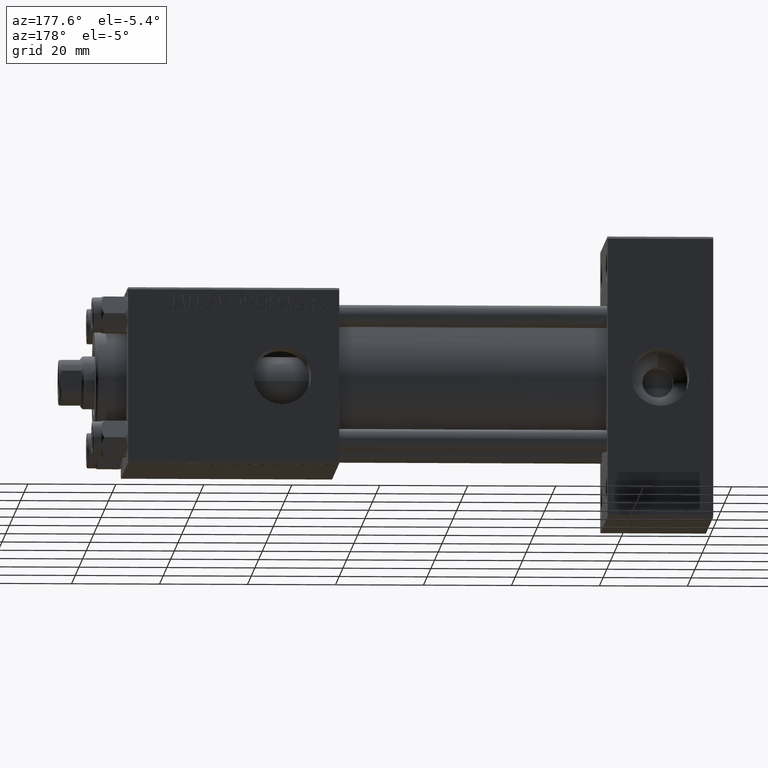
[diagram: clean part render]
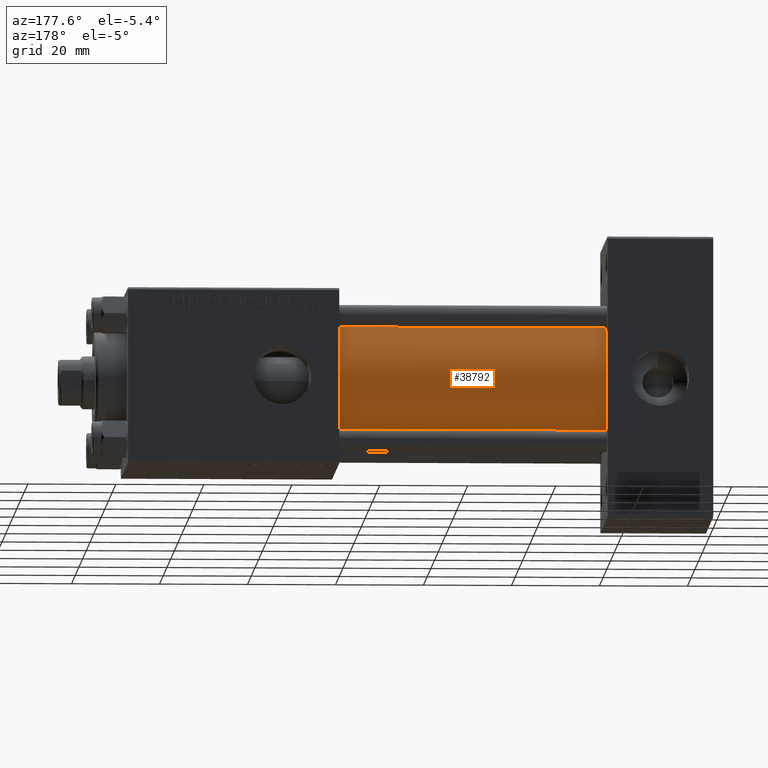
[diagram: same view with one face highlighted and labeled with its STEP entity id]
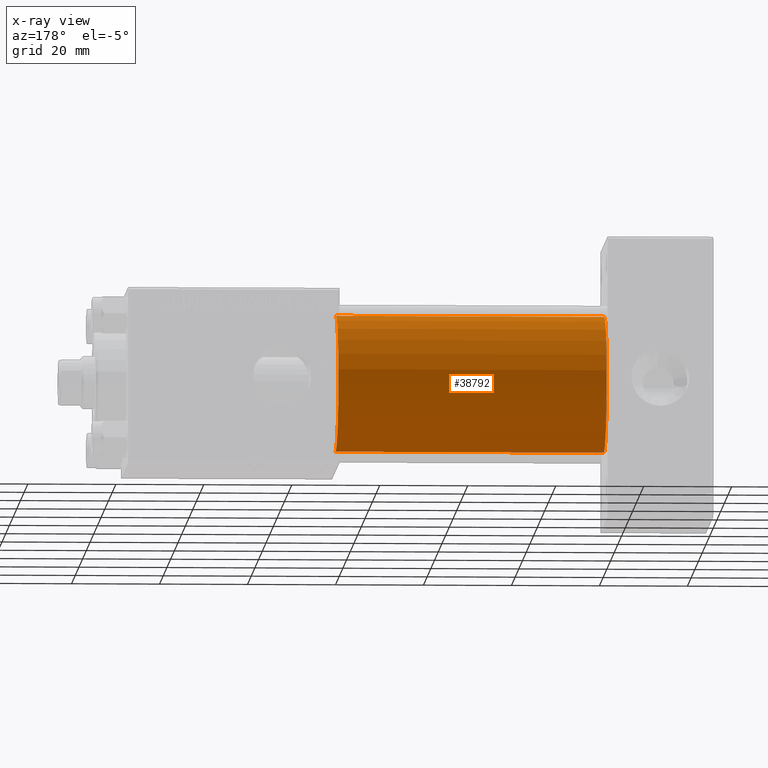
[diagram: x-ray of the same camera — body ghosted, the highlighted face saturated]
A machine part, auxiliary view. The second image highlights one B-rep face of the part: STEP entity #38792.
The next image is the same camera in x-ray: the body ghosted, the highlighted face saturated — about 0% of this face is hidden behind the body in this view.
In plain terms, the highlighted cylindrical surface (partial cylindrical patch) has radius 15.5 mm, axis along (-1, -0, -0).
Its self-contained STEP definition (entity closure, byte-faithful):
#82 = AXIS2_PLACEMENT_3D ( 'NONE', #4547, #769, #16159 ) ;
#769 = DIRECTION ( 'NONE',  ( -1.000000000000000000, -0.000000000000000000, -0.000000000000000000 ) ) ;
#2138 = EDGE_CURVE ( 'NONE', #35385, #14652, #38648, .T. ) ;
#3137 = CARTESIAN_POINT ( 'NONE',  ( 84.99999999999998579, -2.602085213965210642E-15, 15.50000000000000000 ) ) ;
#3630 = DIRECTION ( 'NONE',  ( -1.000000000000000000, -0.000000000000000000, -0.000000000000000000 ) ) ;
#4047 = DIRECTION ( 'NONE',  ( -1.000000000000000000, -0.000000000000000000, -0.000000000000000000 ) ) ;
#4360 = AXIS2_PLACEMENT_3D ( 'NONE', #14795, #42054, #7463 ) ;
#4547 = CARTESIAN_POINT ( 'NONE',  ( 84.99999999999998579, -2.602085213965210642E-15, 0.000000000000000000 ) ) ;
#5601 = VECTOR ( 'NONE', #4047, 1000.000000000000000 ) ;
#7463 = DIRECTION ( 'NONE',  ( 0.000000000000000000, 0.000000000000000000, -1.000000000000000000 ) ) ;
#8533 = EDGE_CURVE ( 'NONE', #38432, #14398, #37726, .T. ) ;
#11409 = ORIENTED_EDGE ( 'NONE', *, *, #22352, .T. ) ;
#11610 = CIRCLE ( 'NONE', #15646, 15.50000000000000000 ) ;
#14398 = VERTEX_POINT ( 'NONE', #37648 ) ;
#14652 = VERTEX_POINT ( 'NONE', #20916 ) ;
#14795 = CARTESIAN_POINT ( 'NONE',  ( 84.99999999999998579, -2.602085213965210642E-15, 0.000000000000000000 ) ) ;
#15646 = AXIS2_PLACEMENT_3D ( 'NONE', #35363, #39903, #20952 ) ;
#16159 = DIRECTION ( 'NONE',  ( 0.000000000000000000, 0.000000000000000000, 1.000000000000000000 ) ) ;
#19267 = CARTESIAN_POINT ( 'NONE',  ( 84.99999999999998579, -2.602085213965210642E-15, 15.50000000000000000 ) ) ;
#20916 = CARTESIAN_POINT ( 'NONE',  ( 24.00000000000000000, -7.038826752868134786E-16, -15.50000000000000000 ) ) ;
#20952 = DIRECTION ( 'NONE',  ( 0.000000000000000000, 0.000000000000000000, 1.000000000000000000 ) ) ;
#22352 = EDGE_CURVE ( 'NONE', #14652, #14398, #11610, .T. ) ;
#22616 = CARTESIAN_POINT ( 'NONE',  ( 84.99999999999998579, -7.038826752868134786E-16, -15.50000000000000000 ) ) ;
#23378 = VECTOR ( 'NONE', #3630, 1000.000000000000000 ) ;
#23755 = CYLINDRICAL_SURFACE ( 'NONE', #82, 15.50000000000000000 ) ;
#23962 = ORIENTED_EDGE ( 'NONE', *, *, #2138, .T. ) ;
#26458 = EDGE_LOOP ( 'NONE', ( #27876, #23962, #11409, #28369 ) ) ;
#27234 = EDGE_CURVE ( 'NONE', #35385, #38432, #47909, .T. ) ;
#27876 = ORIENTED_EDGE ( 'NONE', *, *, #27234, .F. ) ;
#28021 = FACE_OUTER_BOUND ( 'NONE', #26458, .T. ) ;
#28369 = ORIENTED_EDGE ( 'NONE', *, *, #8533, .F. ) ;
#35363 = CARTESIAN_POINT ( 'NONE',  ( 24.00000000000000000, -2.602085213965210642E-15, 0.000000000000000000 ) ) ;
#35385 = VERTEX_POINT ( 'NONE', #22616 ) ;
#37648 = CARTESIAN_POINT ( 'NONE',  ( 24.00000000000000000, -2.602085213965210642E-15, 15.50000000000000000 ) ) ;
#37726 = LINE ( 'NONE', #3137, #23378 ) ;
#38432 = VERTEX_POINT ( 'NONE', #19267 ) ;
#38648 = LINE ( 'NONE', #46972, #5601 ) ;
#38792 = ADVANCED_FACE ( 'NONE', ( #28021 ), #23755, .T. ) ;
#39903 = DIRECTION ( 'NONE',  ( 1.000000000000000000, 0.000000000000000000, 0.000000000000000000 ) ) ;
#42054 = DIRECTION ( 'NONE',  ( 1.000000000000000000, 0.000000000000000000, 0.000000000000000000 ) ) ;
#46972 = CARTESIAN_POINT ( 'NONE',  ( 84.99999999999998579, -7.038826752868134786E-16, -15.50000000000000000 ) ) ;
#47909 = CIRCLE ( 'NONE', #4360, 15.50000000000000000 ) ;